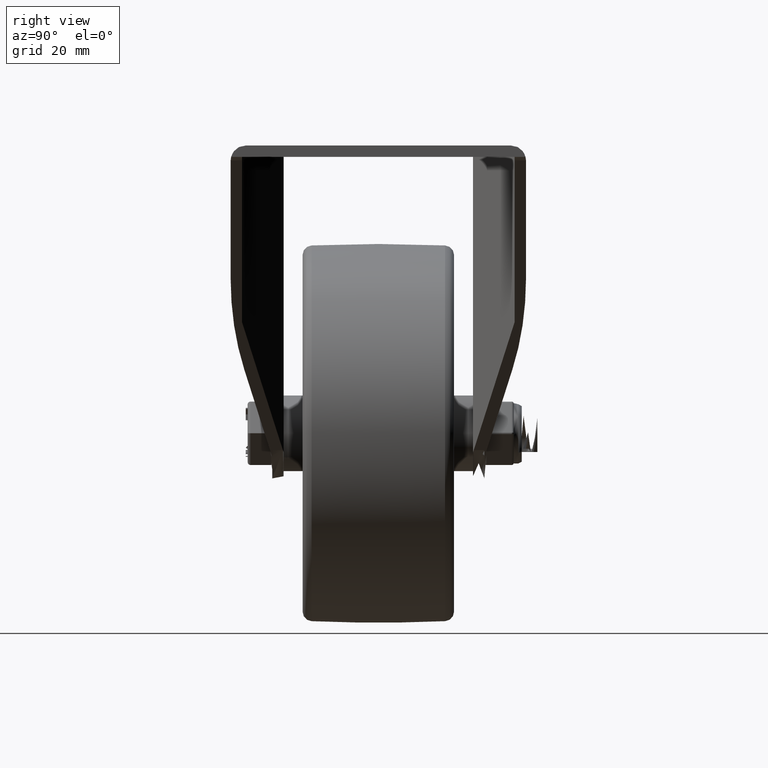
[diagram: clean part render]
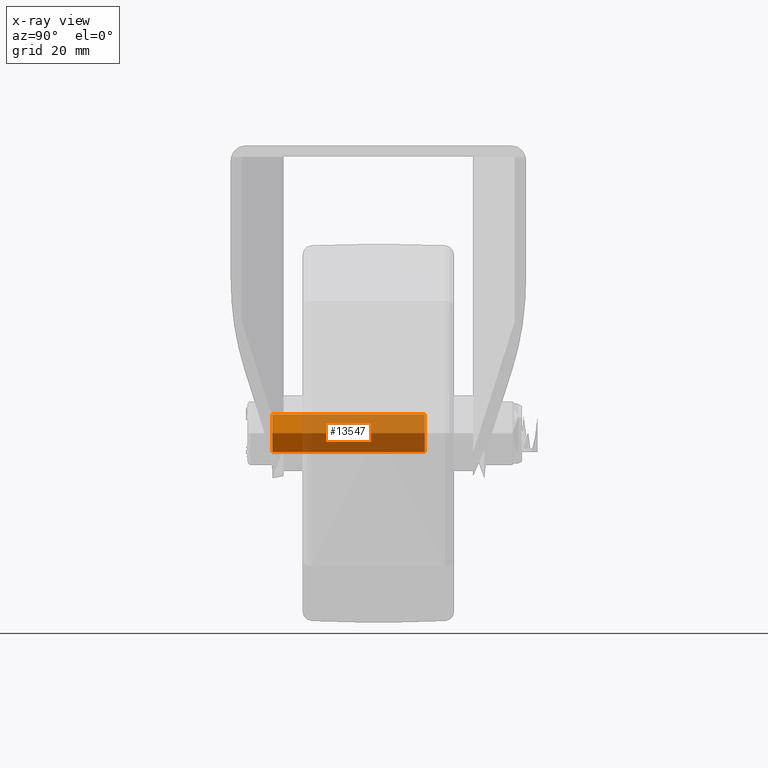
[diagram: x-ray — body ghosted, one internal face saturated and labeled with its STEP entity id]
A machine part, right view, then the same camera in x-ray: the body is ghosted and one INTERNAL B-rep face — a face not visible from any outside direction — is saturated and labeled: STEP entity #13547.
In plain terms, the highlighted cylindrical surface (bore or boss wall) has radius 5 mm, axis along (0, 1, 0).
Its self-contained STEP definition (entity closure, byte-faithful):
#1491=CYLINDRICAL_SURFACE('',#14867,5.);
#2162=CIRCLE('',#14813,5.);
#2164=CIRCLE('',#14868,5.);
#2994=FACE_OUTER_BOUND('',#3950,.T.);
#3950=EDGE_LOOP('',(#12267,#12268,#12269,#12270));
#4661=LINE('',#56098,#5359);
#5359=VECTOR('',#17809,5.);
#6456=VERTEX_POINT('',#54862);
#6588=VERTEX_POINT('',#56096);
#8286=EDGE_CURVE('',#6456,#6456,#2162,.T.);
#8487=EDGE_CURVE('',#6588,#6588,#2164,.T.);
#8488=EDGE_CURVE('',#6588,#6456,#4661,.T.);
#12267=ORIENTED_EDGE('',*,*,#8487,.F.);
#12268=ORIENTED_EDGE('',*,*,#8488,.T.);
#12269=ORIENTED_EDGE('',*,*,#8286,.T.);
#12270=ORIENTED_EDGE('',*,*,#8488,.F.);
#13547=ADVANCED_FACE('',(#2994),#1491,.T.);
#14813=AXIS2_PLACEMENT_3D('',#54863,#17572,#17573);
#14867=AXIS2_PLACEMENT_3D('',#56095,#17805,#17806);
#14868=AXIS2_PLACEMENT_3D('',#56097,#17807,#17808);
#17572=DIRECTION('center_axis',(0.,1.,3.49148336110938E-15));
#17573=DIRECTION('ref_axis',(-1.,0.,0.));
#17805=DIRECTION('center_axis',(0.,1.,3.49148336110938E-15));
#17806=DIRECTION('ref_axis',(-1.,0.,0.));
#17807=DIRECTION('center_axis',(5.34552942018439E-47,1.,3.49148336110938E-15));
#17808=DIRECTION('ref_axis',(1.,4.27583392245883E-31,-1.22464679914735E-16));
#17809=DIRECTION('',(0.,-1.,-3.49148336110938E-15));
#54862=CARTESIAN_POINT('',(5.,-31.8800011149681,-32.1300011149682));
#54863=CARTESIAN_POINT('Origin',(0.,-31.8800011149681,-32.1300011149682));
#56095=CARTESIAN_POINT('Origin',(0.,-31.8800011149681,-32.1300011149682));
#56096=CARTESIAN_POINT('',(5.,8.3699988850319,-32.1300011149681));
#56097=CARTESIAN_POINT('Origin',(0.,8.3699988850319,-32.1300011149681));
#56098=CARTESIAN_POINT('',(5.,-31.8800011149681,-32.1300011149682));